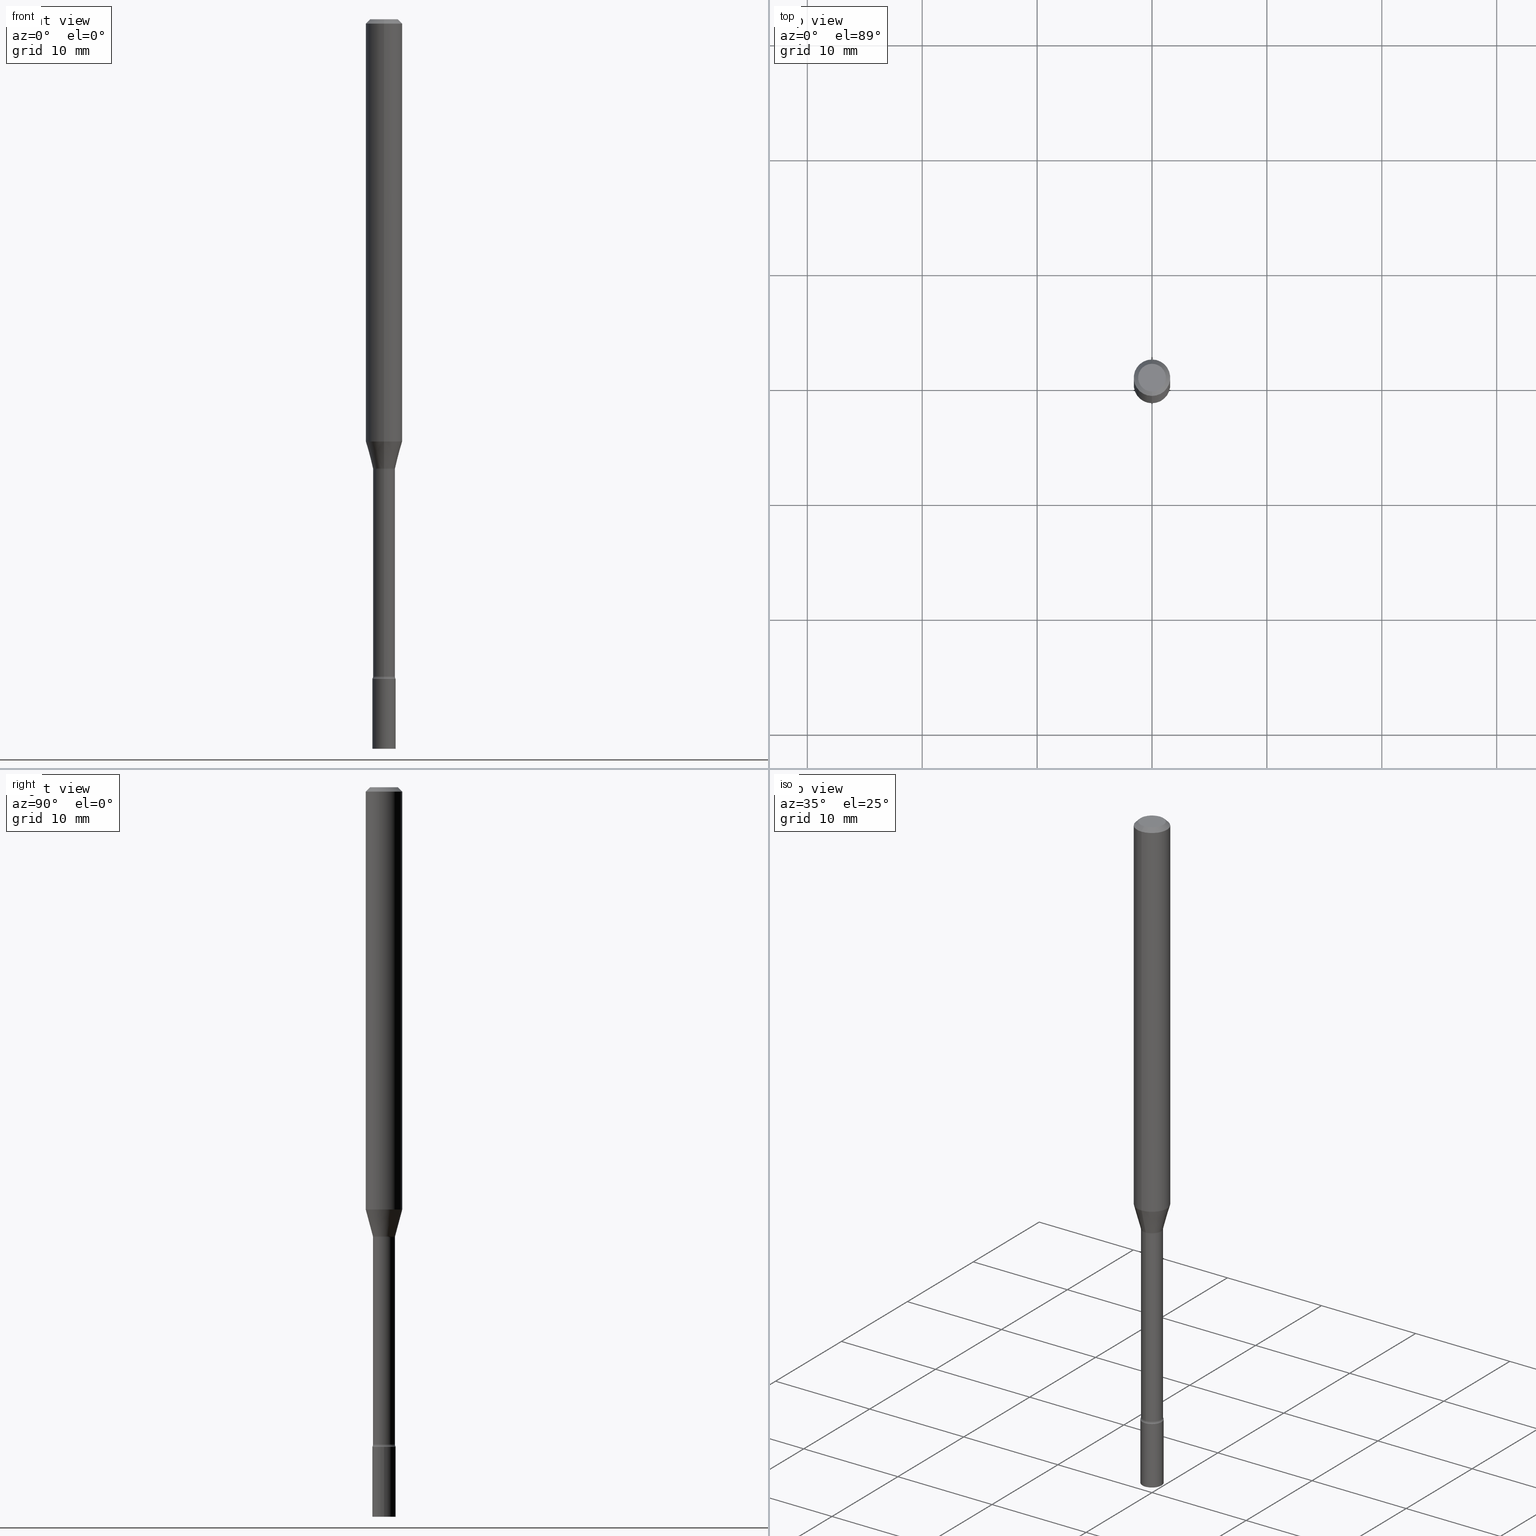
[diagram: canonical four-view strip — front | top / right | iso, engineering-drawing reading convention]
A machine part, canonical four-view strip (front | top / right | iso — engineering-drawing reading convention). The complete STEP part file that produces these views, byte-faithful:
ISO-10303-21;
HEADER;
FILE_DESCRIPTION (( 'STEP AP203' ),
    '1' );
FILE_NAME ('04312.STEP',
    '2024-03-08T23:04:33',
    ( '' ),
    ( '' ),
    'SwSTEP 2.0',
    'SolidWorks 2023',
    '' );
FILE_SCHEMA (( 'CONFIG_CONTROL_DESIGN' ));
ENDSEC;

DATA;
#1 = CARTESIAN_POINT ( 'NONE',  ( 3.770881139600357188E-29, -5.383733381285902245E-15, -1.541974787463810781 ) ) ;
#2 = ORIENTED_EDGE ( 'NONE', *, *, #17, .F. ) ;
#3 = DIRECTION ( 'NONE',  ( -2.445468806185136597E-29, 3.491481338843145583E-15, 1.000000000000000000 ) ) ;
#4 = DIRECTION ( 'NONE',  ( -6.982962677686265922E-15, -1.000000000000000000, 6.829619984160658243E-15 ) ) ;
#5 = VECTOR ( 'NONE', #238, 39.37007874015748143 ) ;
#6 = CARTESIAN_POINT ( 'NONE',  ( 4.364351673553919652E-16, 0.06249999999999995143, -0.01500000000000024751 ) ) ;
#7 = APPROVAL_PERSON_ORGANIZATION ( #48, #361, #394 ) ;
#8 = CARTESIAN_POINT ( 'NONE',  ( 5.506899991020122341E-29, -7.862268846851047983E-15, -2.251861204020249918 ) ) ;
#9 = AXIS2_PLACEMENT_3D ( 'NONE', #423, #215, #508 ) ;
#10 = DIRECTION ( 'NONE',  ( -6.982962677686265922E-15, -1.000000000000000000, 3.491453573077475087E-15 ) ) ;
#11 = DIRECTION ( 'NONE',  ( -2.445488194915675677E-29, 3.491453573077475482E-15, 1.000000000000000000 ) ) ;
#12 = AXIS2_PLACEMENT_3D ( 'NONE', #389, #422, #429 ) ;
#13 = APPROVAL_DATE_TIME ( #63, #40 ) ;
#14 = VECTOR ( 'NONE', #260, 39.37007874015748143 ) ;
#15 = ORIENTED_EDGE ( 'NONE', *, *, #89, .F. ) ;
#16 = LOCAL_TIME ( 18, 4, 33.00000000000000000, #401 ) ;
#17 = EDGE_CURVE ( 'NONE', #412, #100, #510, .T. ) ;
#18 = APPROVAL_PERSON_ORGANIZATION ( #514, #479, #266 ) ;
#19 = DIRECTION ( 'NONE',  ( -6.982962677686265922E-15, -1.000000000000000000, 3.491453573077475087E-15 ) ) ;
#20 = PERSON_AND_ORGANIZATION ( #501, #96 ) ;
#21 = EDGE_LOOP ( 'NONE', ( #110, #67, #302, #496 ) ) ;
#22 = CARTESIAN_POINT ( 'NONE',  ( 3.761387055809094447E-29, -5.370178561088847638E-15, -1.538092501787273081 ) ) ;
#23 = DIRECTION ( 'NONE',  ( -6.982962677686266711E-15, -1.000000000000000000, 3.491453573077475876E-15 ) ) ;
#24 = PLANE ( 'NONE',  #173 ) ;
#25 = CARTESIAN_POINT ( 'NONE',  ( -4.287811248607203282E-16, -0.06250000000000005551, -0.01499999999999981209 ) ) ;
#26 = EDGE_CURVE ( 'NONE', #451, #480, #363, .T. ) ;
#27 = ADVANCED_FACE ( 'NONE', ( #107 ), #325, .T. ) ;
#28 = SECURITY_CLASSIFICATION ( '', '', #306 ) ;
#29 = CIRCLE ( 'NONE', #207, 0.04000000000000000083 ) ;
#30 = CARTESIAN_POINT ( 'NONE',  ( 0.04000000000000000083, -2.793185071074506290E-16, 1.950470710318374387E-30 ) ) ;
#31 = DESIGN_CONTEXT ( 'detailed design', #139, 'design' ) ;
#32 = EDGE_LOOP ( 'NONE', ( #264, #462, #74, #414 ) ) ;
#33 = CARTESIAN_POINT ( 'NONE',  ( 2.671640686457979762E-16, 0.03760000000000005005, -1.312786543477132333E-16 ) ) ;
#34 = ORIENTED_EDGE ( 'NONE', *, *, #481, .F. ) ;
#35 = ORIENTED_EDGE ( 'NONE', *, *, #432, .T. ) ;
#36 = PERSON_AND_ORGANIZATION_ROLE ( 'design_supplier' ) ;
#37 = CARTESIAN_POINT ( 'NONE',  ( -4.364351673553912750E-16, -0.06250000000000005551, -0.01499999999999981209 ) ) ;
#38 = DIRECTION ( 'NONE',  ( -2.445488194915675677E-29, 3.491453573077475482E-15, 1.000000000000000000 ) ) ;
#39 = PERSON_AND_ORGANIZATION_ROLE ( 'creator' ) ;
#40 = APPROVAL ( #427, 'UNSPECIFIED' ) ;
#41 = EDGE_CURVE ( 'NONE', #412, #191, #185, .T. ) ;
#42 = CARTESIAN_POINT ( 'NONE',  ( 2.842170943040952512E-16, 0.03999999999999211131, -2.260000000000000675 ) ) ;
#43 = EDGE_LOOP ( 'NONE', ( #328, #367, #184, #160 ) ) ;
#44 = CARTESIAN_POINT ( 'NONE',  ( -2.625593966809491224E-16, -0.03760000000000795345, -2.251861204020249918 ) ) ;
#45 = APPROVAL_DATE_TIME ( #315, #479 ) ;
#46 = DIRECTION ( 'NONE',  ( -2.445488194915675677E-29, 3.491453573077475482E-15, 1.000000000000000000 ) ) ;
#47 = LINE ( 'NONE', #118, #5 ) ;
#48 = PERSON_AND_ORGANIZATION ( #501, #96 ) ;
#49 = FACE_OUTER_BOUND ( 'NONE', #43, .T. ) ;
#50 = ADVANCED_FACE ( 'NONE', ( #459 ), #88, .T. ) ;
#51 = DIRECTION ( 'NONE',  ( 2.445488194915675677E-29, -3.491453573077475482E-15, -1.000000000000000000 ) ) ;
#52 = AXIS2_PLACEMENT_3D ( 'NONE', #55, #324, #391 ) ;
#53 = CIRCLE ( 'NONE', #132, 0.03760000000000009168 ) ;
#54 = AXIS2_PLACEMENT_3D ( 'NONE', #402, #3, #124 ) ;
#55 = CARTESIAN_POINT ( 'NONE',  ( 3.316907271900976096E-16, 0.04749999999999999362, -1.803016596220492343E-16 ) ) ;
#56 = EDGE_CURVE ( 'NONE', #387, #146, #492, .T. ) ;
#57 = DIRECTION ( 'NONE',  ( 6.982962677686265922E-15, 1.000000000000000000, -3.483106191921935554E-15 ) ) ;
#58 = AXIS2_PLACEMENT_3D ( 'NONE', #437, #159, #265 ) ;
#59 = EDGE_LOOP ( 'NONE', ( #276, #342, #35, #296 ) ) ;
#60 = DIRECTION ( 'NONE',  ( -6.982962677686265922E-15, -1.000000000000000000, 3.491453573077475876E-15 ) ) ;
#61 = ORIENTED_EDGE ( 'NONE', *, *, #72, .T. ) ;
#62 = ORIENTED_EDGE ( 'NONE', *, *, #456, .F. ) ;
#63 = DATE_AND_TIME ( #255, #332 ) ;
#64 = EDGE_CURVE ( 'NONE', #195, #203, #95, .T. ) ;
#65 = DIRECTION ( 'NONE',  ( -2.445488194915675677E-29, 3.491453573077475482E-15, 1.000000000000000000 ) ) ;
#66 = CARTESIAN_POINT ( 'NONE',  ( -2.661284769304128200E-16, -0.03811111260566939218, -1.538092501787273081 ) ) ;
#67 = ORIENTED_EDGE ( 'NONE', *, *, #72, .F. ) ;
#68 = CIRCLE ( 'NONE', #269, 0.04000000000000000083 ) ;
#69 = DIRECTION ( 'NONE',  ( -1.000000000000000000, 6.982962677686265922E-15, -4.876176775795935793E-29 ) ) ;
#70 = DIRECTION ( 'NONE',  ( 1.000000000000000000, -6.982962677686259611E-15, 0.000000000000000000 ) ) ;
#71 = DIRECTION ( 'NONE',  ( -2.445488194915675677E-29, 3.491453573077475087E-15, 1.000000000000000000 ) ) ;
#72 = EDGE_CURVE ( 'NONE', #466, #412, #53, .T. ) ;
#73 = APPLICATION_PROTOCOL_DEFINITION ( 'international standard', 'config_control_design', 1994, #139 ) ;
#74 = ORIENTED_EDGE ( 'NONE', *, *, #26, .F. ) ;
#75 = DIRECTION ( 'NONE',  ( -2.445488194915675677E-29, 3.491453573077475482E-15, 1.000000000000000000 ) ) ;
#76 = CARTESIAN_POINT ( 'NONE',  ( 5.526759501978408888E-29, -7.890747825785510097E-15, -2.260000000000000231 ) ) ;
#77 = AXIS2_PLACEMENT_3D ( 'NONE', #22, #65, #379 ) ;
#78 = CARTESIAN_POINT ( 'NONE',  ( 3.761387055809094447E-29, -5.370178561088847638E-15, -1.538092501787273081 ) ) ;
#79 = ORIENTED_EDGE ( 'NONE', *, *, #225, .T. ) ;
#80 = CC_DESIGN_DATE_AND_TIME_ASSIGNMENT ( #256, #417, ( #129 ) ) ;
#81 = EDGE_CURVE ( 'NONE', #466, #457, #227, .T. ) ;
#82 = COORDINATED_UNIVERSAL_TIME_OFFSET ( 5, 0, .BEHIND. ) ;
#83 = CARTESIAN_POINT ( 'NONE',  ( -2.625593966809658857E-16, -0.03760000000000538606, -1.541974787463810781 ) ) ;
#84 = ADVANCED_BREP_SHAPE_REPRESENTATION ( '04312', ( #337, #333, #224 ), #253 ) ;
#85 = EDGE_LOOP ( 'NONE', ( #138, #425 ) ) ;
#86 = DIRECTION ( 'NONE',  ( -2.445488194915675677E-29, 3.491453573077475482E-15, 1.000000000000000000 ) ) ;
#87 = CONICAL_SURFACE ( 'NONE', #364, 0.06250000000000000000, 0.7853981633974483900 ) ;
#88 = CONICAL_SURFACE ( 'NONE', #12, 0.06250000000000000000, 0.7853981633974483900 ) ;
#89 = EDGE_CURVE ( 'NONE', #365, #165, #68, .T. ) ;
#90 = EDGE_CURVE ( 'NONE', #381, #287, #376, .T. ) ;
#91 = CC_DESIGN_DATE_AND_TIME_ASSIGNMENT ( #317, #405, ( #28 ) ) ;
#92 = EDGE_CURVE ( 'NONE', #146, #387, #311, .T. ) ;
#93 = ORIENTED_EDGE ( 'NONE', *, *, #92, .F. ) ;
#94 = CIRCLE ( 'NONE', #506, 0.04000000000000000083 ) ;
#95 = CIRCLE ( 'NONE', #347, 0.04749999999999999362 ) ;
#96 = ORGANIZATION ( 'UNSPECIFIED', 'UNSPECIFIED', '' ) ;
#97 = ORIENTED_EDGE ( 'NONE', *, *, #519, .T. ) ;
#98 = CALENDAR_DATE ( 2024, 8, 3 ) ;
#99 = VERTEX_POINT ( 'NONE', #377 ) ;
#100 = VERTEX_POINT ( 'NONE', #416 ) ;
#101 = DIRECTION ( 'NONE',  ( -6.982962677686265133E-15, -1.000000000000000000, 0.000000000000000000 ) ) ;
#102 = VECTOR ( 'NONE', #125, 39.37007874015748854 ) ;
#103 = ADVANCED_FACE ( 'NONE', ( #220 ), #419, .T. ) ;
#104 = DIRECTION ( 'NONE',  ( -6.982962677686265922E-15, -1.000000000000000000, 3.483106191921935554E-15 ) ) ;
#105 = CARTESIAN_POINT ( 'NONE',  ( 0.000000000000000000, 0.000000000000000000, 0.000000000000000000 ) ) ;
#106 = ORIENTED_EDGE ( 'NONE', *, *, #452, .F. ) ;
#107 = FACE_OUTER_BOUND ( 'NONE', #491, .T. ) ;
#108 = DIRECTION ( 'NONE',  ( 1.000000000000000000, 0.000000000000000000, 0.000000000000000000 ) ) ;
#109 = LINE ( 'NONE', #6, #384 ) ;
#110 = ORIENTED_EDGE ( 'NONE', *, *, #41, .F. ) ;
#111 = PERSON_AND_ORGANIZATION_ROLE ( 'classification_officer' ) ;
#112 = DIRECTION ( 'NONE',  ( -2.445468806185136597E-29, 3.491481338843145583E-15, 1.000000000000000000 ) ) ;
#113 = CIRCLE ( 'NONE', #54, 0.04000000000000000083 ) ;
#114 = CARTESIAN_POINT ( 'NONE',  ( 0.04000000000000000083, -8.170066332892960135E-15, -2.260000000000000231 ) ) ;
#115 = AXIS2_PLACEMENT_3D ( 'NONE', #488, #368, #104 ) ;
#116 = ADVANCED_FACE ( 'NONE', ( #374 ), #373, .F. ) ;
#117 = DIRECTION ( 'NONE',  ( -2.445468806185136597E-29, 3.491481338843145583E-15, 1.000000000000000000 ) ) ;
#118 = CARTESIAN_POINT ( 'NONE',  ( -0.04000000000000000083, 2.842170943040400803E-16, -1.967574036101962509E-30 ) ) ;
#119 = ORIENTED_EDGE ( 'NONE', *, *, #26, .T. ) ;
#120 = CARTESIAN_POINT ( 'NONE',  ( 5.526803320509427725E-29, -7.890685075155095314E-15, -2.260000000000000231 ) ) ;
#121 = ADVANCED_FACE ( 'NONE', ( #305 ), #24, .F. ) ;
#122 = APPROVAL_STATUS ( 'not_yet_approved' ) ;
#123 = VECTOR ( 'NONE', #188, 39.37007874015748143 ) ;
#124 = DIRECTION ( 'NONE',  ( 1.000000000000000000, -6.982962677686259611E-15, 0.000000000000000000 ) ) ;
#125 = DIRECTION ( 'NONE',  ( 1.839019923739597949E-15, 0.2588190451025246253, 0.9659258262890670910 ) ) ;
#126 = DIRECTION ( 'NONE',  ( -6.982962677686266711E-15, -1.000000000000000000, 3.491453573077475876E-15 ) ) ;
#127 = ADVANCED_FACE ( 'NONE', ( #500 ), #176, .T. ) ;
#128 = ADVANCED_FACE ( 'NONE', ( #420 ), #135, .F. ) ;
#129 = PRODUCT_DEFINITION ( 'UNKNOWN', '', #250, #31 ) ;
#130 = LOCAL_TIME ( 18, 4, 33.00000000000000000, #82 ) ;
#131 = ADVANCED_FACE ( 'NONE', ( #298 ), #474, .F. ) ;
#132 = AXIS2_PLACEMENT_3D ( 'NONE', #261, #303, #101 ) ;
#133 = ORIENTED_EDGE ( 'NONE', *, *, #481, .T. ) ;
#134 = CC_DESIGN_SECURITY_CLASSIFICATION ( #28, ( #250 ) ) ;
#135 = TOROIDAL_SURFACE ( 'NONE', #435, 0.05260000000000008419, 0.01499999999999999424 ) ;
#136 = DIRECTION ( 'NONE',  ( -6.982962677686265922E-15, -1.000000000000000000, 3.491453573077475482E-15 ) ) ;
#137 = PERSON_AND_ORGANIZATION_ROLE ( 'creator' ) ;
#138 = ORIENTED_EDGE ( 'NONE', *, *, #418, .F. ) ;
#139 = APPLICATION_CONTEXT ( 'configuration controlled 3d designs of mechanical parts and assemblies' ) ;
#140 = DIRECTION ( 'NONE',  ( -2.445488194915675677E-29, 3.491453573077475482E-15, 1.000000000000000000 ) ) ;
#141 = EDGE_CURVE ( 'NONE', #365, #451, #204, .T. ) ;
#142 = ORIENTED_EDGE ( 'NONE', *, *, #432, .F. ) ;
#143 = DIRECTION ( 'NONE',  ( -2.445488194915675677E-29, 3.491453573077475482E-15, 1.000000000000000000 ) ) ;
#144 = CARTESIAN_POINT ( 'NONE',  ( 2.793185071075117657E-16, 0.03999999999999127864, -2.500000000000000000 ) ) ;
#145 = EDGE_LOOP ( 'NONE', ( #335, #79, #93, #142 ) ) ;
#146 = VERTEX_POINT ( 'NONE', #37 ) ;
#147 = DIRECTION ( 'NONE',  ( -6.982962677686265922E-15, -1.000000000000000000, 3.483106191921935554E-15 ) ) ;
#148 = AXIS2_PLACEMENT_3D ( 'NONE', #278, #151, #464 ) ;
#149 = DIRECTION ( 'NONE',  ( -6.982962677686265922E-15, -1.000000000000000000, 0.000000000000000000 ) ) ;
#150 = EDGE_LOOP ( 'NONE', ( #178, #97, #504, #62 ) ) ;
#151 = DIRECTION ( 'NONE',  ( -2.445488194915675677E-29, 3.491453573077475482E-15, 1.000000000000000000 ) ) ;
#152 = ADVANCED_FACE ( 'NONE', ( #444 ), #189, .T. ) ;
#153 = CARTESIAN_POINT ( 'NONE',  ( 6.113672015462842613E-29, -8.728703347107864943E-15, -2.500000000000000000 ) ) ;
#154 = CARTESIAN_POINT ( 'NONE',  ( 4.440892098500625669E-16, 0.06250000000000000000, -2.182158483173421929E-16 ) ) ;
#155 = AXIS2_PLACEMENT_3D ( 'NONE', #390, #183, #196 ) ;
#156 = CALENDAR_DATE ( 2024, 8, 3 ) ;
#157 = DIRECTION ( 'NONE',  ( -6.982962677686265922E-15, -1.000000000000000000, 3.491453573077475087E-15 ) ) ;
#158 = CARTESIAN_POINT ( 'NONE',  ( 3.840629472727447874E-16, 0.04749999999999999362, -1.947592745229184119E-16 ) ) ;
#159 = DIRECTION ( 'NONE',  ( -2.445488194915675677E-29, 3.491453573077475482E-15, 1.000000000000000000 ) ) ;
#160 = ORIENTED_EDGE ( 'NONE', *, *, #56, .T. ) ;
#161 = DIRECTION ( 'NONE',  ( -6.982962677686266711E-15, -1.000000000000000000, 0.000000000000000000 ) ) ;
#162 = DIRECTION ( 'NONE',  ( -2.438088387897960049E-29, 3.491481338843145188E-15, 1.000000000000000000 ) ) ;
#163 = CIRCLE ( 'NONE', #290, 0.03811111260566402148 ) ;
#164 = CIRCLE ( 'NONE', #171, 0.06250000000000000000 ) ;
#165 = VERTEX_POINT ( 'NONE', #193 ) ;
#166 = EDGE_CURVE ( 'NONE', #99, #457, #517, .T. ) ;
#167 = AXIS2_PLACEMENT_3D ( 'NONE', #507, #140, #60 ) ;
#168 = ADVANCED_FACE ( 'NONE', ( #477 ), #520, .T. ) ;
#169 = ORIENTED_EDGE ( 'NONE', *, *, #209, .F. ) ;
#170 = CARTESIAN_POINT ( 'NONE',  ( 2.793185071075058985E-16, 0.03999999999999211131, -2.260000000000000675 ) ) ;
#171 = AXIS2_PLACEMENT_3D ( 'NONE', #283, #443, #472 ) ;
#172 = DIRECTION ( 'NONE',  ( -6.982962677686265922E-15, -1.000000000000000000, 0.000000000000000000 ) ) ;
#173 = AXIS2_PLACEMENT_3D ( 'NONE', #170, #369, #19 ) ;
#174 = AXIS2_PLACEMENT_3D ( 'NONE', #78, #509, #149 ) ;
#175 = EDGE_CURVE ( 'NONE', #466, #400, #270, .T. ) ;
#176 = PLANE ( 'NONE',  #355 ) ;
#177 =( LENGTH_UNIT ( ) NAMED_UNIT ( * ) SI_UNIT ( $, .METRE. ) );
#178 = ORIENTED_EDGE ( 'NONE', *, *, #320, .F. ) ;
#179 = CC_DESIGN_PERSON_AND_ORGANIZATION_ASSIGNMENT ( #240, #36, ( #250 ) ) ;
#180 = EDGE_CURVE ( 'NONE', #381, #99, #163, .T. ) ;
#181 = ORIENTED_EDGE ( 'NONE', *, *, #180, .F. ) ;
#182 = DIRECTION ( 'NONE',  ( -2.445468806185136597E-29, 3.491481338843145583E-15, 1.000000000000000000 ) ) ;
#183 = DIRECTION ( 'NONE',  ( -2.445488194915675677E-29, 3.491453573077475482E-15, 1.000000000000000000 ) ) ;
#184 = ORIENTED_EDGE ( 'NONE', *, *, #456, .T. ) ;
#185 = CIRCLE ( 'NONE', #228, 0.01499999999999999424 ) ;
#186 = CIRCLE ( 'NONE', #407, 0.03760000000000009168 ) ;
#187 = CARTESIAN_POINT ( 'NONE',  ( -2.793185071073953101E-16, -0.04000000000000789036, -2.259999999999999787 ) ) ;
#188 = DIRECTION ( 'NONE',  ( -4.851104656540964275E-15, -0.7071067811865500152, -0.7071067811865450192 ) ) ;
#189 = CYLINDRICAL_SURFACE ( 'NONE', #397, 0.03760000000000005005 ) ;
#190 = DIRECTION ( 'NONE',  ( 7.105427357601001859E-15, 1.000000000000000000, 0.000000000000000000 ) ) ;
#191 = VERTEX_POINT ( 'NONE', #42 ) ;
#192 = ORIENTED_EDGE ( 'NONE', *, *, #141, .T. ) ;
#193 = CARTESIAN_POINT ( 'NONE',  ( -0.04000000000000000083, -8.025508492142646404E-15, -2.500000000000000000 ) ) ;
#194 = CARTESIAN_POINT ( 'NONE',  ( -2.625593966810039482E-16, -0.03760000000000005005, 1.312786543477132333E-16 ) ) ;
#195 = VERTEX_POINT ( 'NONE', #158 ) ;
#196 = DIRECTION ( 'NONE',  ( -6.982962677686265922E-15, -1.000000000000000000, 3.491453573077475876E-15 ) ) ;
#197 = CARTESIAN_POINT ( 'NONE',  ( -3.773273898774340269E-16, -0.04749999999999999362, 1.369288149194417510E-16 ) ) ;
#198 = APPROVAL_DATE_TIME ( #352, #361 ) ;
#199 = ADVANCED_FACE ( 'NONE', ( #279 ), #476, .T. ) ;
#200 = CARTESIAN_POINT ( 'NONE',  ( 0.000000000000000000, 0.000000000000000000, 0.000000000000000000 ) ) ;
#201 = ORIENTED_EDGE ( 'NONE', *, *, #320, .T. ) ;
#202 = CARTESIAN_POINT ( 'NONE',  ( 3.668232292373520995E-31, -5.237180359616224094E-17, -0.01500000000000003067 ) ) ;
#203 = VERTEX_POINT ( 'NONE', #197 ) ;
#204 = LINE ( 'NONE', #30, #449 ) ;
#205 = FACE_OUTER_BOUND ( 'NONE', #430, .T. ) ;
#206 = CARTESIAN_POINT ( 'NONE',  ( 7.071185313342504801E-46, -1.009561824076356287E-31, -2.891522980173833663E-17 ) ) ;
#207 = AXIS2_PLACEMENT_3D ( 'NONE', #120, #86, #241 ) ;
#208 = CIRCLE ( 'NONE', #58, 0.06250000000000000000 ) ;
#209 = EDGE_CURVE ( 'NONE', #165, #480, #47, .T. ) ;
#210 = AXIS2_PLACEMENT_3D ( 'NONE', #76, #112, #513 ) ;
#211 = ADVANCED_FACE ( 'NONE', ( #348 ), #399, .T. ) ;
#212 = CIRCLE ( 'NONE', #248, 0.04000000000000000083 ) ;
#213 = PERSON_AND_ORGANIZATION ( #501, #96 ) ;
#214 = ORIENTED_EDGE ( 'NONE', *, *, #17, .T. ) ;
#215 = DIRECTION ( 'NONE',  ( -2.445488194915675677E-29, 3.491453573077475482E-15, 1.000000000000000000 ) ) ;
#216 = ORIENTED_EDGE ( 'NONE', *, *, #90, .T. ) ;
#217 = DIRECTION ( 'NONE',  ( 1.000000000000000000, -7.105427357601001070E-15, 4.926315168509521983E-29 ) ) ;
#218 = DIRECTION ( 'NONE',  ( 1.000000000000000000, -7.105427357601001070E-15, 4.926315168509521983E-29 ) ) ;
#219 = CARTESIAN_POINT ( 'NONE',  ( 2.707957421369351104E-16, 0.03811111260565865078, -1.538092501787273081 ) ) ;
#220 = FACE_OUTER_BOUND ( 'NONE', #304, .T. ) ;
#221 = ORIENTED_EDGE ( 'NONE', *, *, #166, .T. ) ;
#222 = CARTESIAN_POINT ( 'NONE',  ( 3.574424759935166620E-16, 0.03811111260565865078, -1.538092501787273081 ) ) ;
#223 = FACE_OUTER_BOUND ( 'NONE', #21, .T. ) ;
#224 = AXIS2_PLACEMENT_3D ( 'NONE', #105, #338, #108 ) ;
#225 = EDGE_CURVE ( 'NONE', #287, #387, #275, .T. ) ;
#226 = ORIENTED_EDGE ( 'NONE', *, *, #467, .T. ) ;
#227 = LINE ( 'NONE', #194, #292 ) ;
#228 = AXIS2_PLACEMENT_3D ( 'NONE', #232, #217, #190 ) ;
#229 = AXIS2_PLACEMENT_3D ( 'NONE', #299, #75, #172 ) ;
#230 = ORIENTED_EDGE ( 'NONE', *, *, #366, .F. ) ;
#231 = CARTESIAN_POINT ( 'NONE',  ( 4.440892098500982135E-16, 0.06249999999999995143, -0.01500000000000024751 ) ) ;
#232 = CARTESIAN_POINT ( 'NONE',  ( 3.737454790098683190E-16, 0.05259999999999222242, -2.251861204020250362 ) ) ;
#233 = PERSON_AND_ORGANIZATION ( #501, #96 ) ;
#234 = CYLINDRICAL_SURFACE ( 'NONE', #330, 0.04000000000000000083 ) ;
#235 = ADVANCED_FACE ( 'NONE', ( #392 ), #234, .T. ) ;
#236 = CARTESIAN_POINT ( 'NONE',  ( -3.673038368462598469E-16, -0.05260000000000538550, -1.541974787463810781 ) ) ;
#237 = CC_DESIGN_PERSON_AND_ORGANIZATION_ASSIGNMENT ( #495, #380, ( #465 ) ) ;
#238 = DIRECTION ( 'NONE',  ( -2.445468806185136877E-29, 3.491481338843145188E-15, 1.000000000000000000 ) ) ;
#239 = ORIENTED_EDGE ( 'NONE', *, *, #478, .T. ) ;
#240 = PERSON_AND_ORGANIZATION ( #501, #96 ) ;
#241 = DIRECTION ( 'NONE',  ( -6.982962677686265922E-15, -1.000000000000000000, 6.829619984160658243E-15 ) ) ;
#242 = PLANE ( 'NONE',  #372 ) ;
#243 = CARTESIAN_POINT ( 'NONE',  ( 2.756905814749742978E-16, 0.03759999999999222992, -2.251861204020249918 ) ) ;
#244 = ORIENTED_EDGE ( 'NONE', *, *, #273, .T. ) ;
#245 = EDGE_CURVE ( 'NONE', #480, #451, #113, .T. ) ;
#246 = ADVANCED_FACE ( 'NONE', ( #205 ), #242, .T. ) ;
#247 = CARTESIAN_POINT ( 'NONE',  ( 4.440892098500977205E-16, 0.06249999999999491379, -1.447071934891535516 ) ) ;
#248 = AXIS2_PLACEMENT_3D ( 'NONE', #398, #46, #4 ) ;
#249 = AXIS2_PLACEMENT_3D ( 'NONE', #263, #143, #436 ) ;
#250 = PRODUCT_DEFINITION_FORMATION_WITH_SPECIFIED_SOURCE ( 'ANY', '', #465, .NOT_KNOWN. ) ;
#251 = PLANE ( 'NONE',  #52 ) ;
#252 = DIRECTION ( 'NONE',  ( -2.445488194915675677E-29, 3.491453573077475482E-15, 1.000000000000000000 ) ) ;
#253 =( GEOMETRIC_REPRESENTATION_CONTEXT ( 3 ) GLOBAL_UNCERTAINTY_ASSIGNED_CONTEXT ( ( #450 ) ) GLOBAL_UNIT_ASSIGNED_CONTEXT ( ( #295, #375, #297 ) ) REPRESENTATION_CONTEXT ( 'NONE', 'WORKASPACE' ) );
#254 = ORIENTED_EDGE ( 'NONE', *, *, #467, .F. ) ;
#255 = CALENDAR_DATE ( 2024, 8, 3 ) ;
#256 = DATE_AND_TIME ( #98, #475 ) ;
#257 = EDGE_CURVE ( 'NONE', #412, #466, #186, .T. ) ;
#258 = EDGE_LOOP ( 'NONE', ( #385, #357, #244, #346 ) ) ;
#259 = DIRECTION ( 'NONE',  ( 2.438088387897960049E-29, -3.491481338843145188E-15, -1.000000000000000000 ) ) ;
#260 = DIRECTION ( 'NONE',  ( -1.807323732225328167E-15, -0.2588190451025179084, 0.9659258262890690894 ) ) ;
#261 = CARTESIAN_POINT ( 'NONE',  ( 5.506899991020122341E-29, -7.862268846851047983E-15, -2.251861204020249918 ) ) ;
#262 = MECHANICAL_CONTEXT ( 'NONE', #404, 'mechanical' ) ;
#263 = CARTESIAN_POINT ( 'NONE',  ( 3.761387055809094447E-29, -5.370178561088847638E-15, -1.538092501787273081 ) ) ;
#264 = ORIENTED_EDGE ( 'NONE', *, *, #89, .T. ) ;
#265 = DIRECTION ( 'NONE',  ( -6.982962677686265922E-15, -1.000000000000000000, 4.370956789862821150E-15 ) ) ;
#266 = APPROVAL_ROLE ( '' ) ;
#267 = CARTESIAN_POINT ( 'NONE',  ( 3.761387055809094447E-29, -5.370178561088847638E-15, -1.538092501787273081 ) ) ;
#268 = AXIS2_PLACEMENT_3D ( 'NONE', #206, #252, #126 ) ;
#269 = AXIS2_PLACEMENT_3D ( 'NONE', #153, #117, #274 ) ;
#270 = CIRCLE ( 'NONE', #294, 0.01499999999999999424 ) ;
#271 = ORIENTED_EDGE ( 'NONE', *, *, #478, .F. ) ;
#272 = CARTESIAN_POINT ( 'NONE',  ( 0.04000000000000000083, -9.008021854215314980E-15, -2.500000000000000000 ) ) ;
#273 = EDGE_CURVE ( 'NONE', #191, #400, #29, .T. ) ;
#274 = DIRECTION ( 'NONE',  ( 1.000000000000000000, -6.982962677686259611E-15, 0.000000000000000000 ) ) ;
#275 = LINE ( 'NONE', #154, #310 ) ;
#276 = ORIENTED_EDGE ( 'NONE', *, *, #225, .F. ) ;
#277 = APPROVAL_STATUS ( 'not_yet_approved' ) ;
#278 = CARTESIAN_POINT ( 'NONE',  ( 0.000000000000000000, 0.000000000000000000, 0.000000000000000000 ) ) ;
#279 = FACE_OUTER_BOUND ( 'NONE', #32, .T. ) ;
#280 = ORIENTED_EDGE ( 'NONE', *, *, #245, .F. ) ;
#281 = DIRECTION ( 'NONE',  ( -2.445468806185136597E-29, 3.491481338843145583E-15, 1.000000000000000000 ) ) ;
#282 = DIRECTION ( 'NONE',  ( -2.445488194915675677E-29, 3.491453573077475482E-15, 1.000000000000000000 ) ) ;
#283 = CARTESIAN_POINT ( 'NONE',  ( 3.538797333971034829E-29, -5.052384477577187527E-15, -1.447071934891535294 ) ) ;
#284 = AXIS2_PLACEMENT_3D ( 'NONE', #1, #282, #403 ) ;
#285 = CARTESIAN_POINT ( 'NONE',  ( -4.364351673553565651E-16, -0.06250000000000509315, -1.447071934891535072 ) ) ;
#286 = ADVANCED_FACE ( 'NONE', ( #49 ), #87, .T. ) ;
#287 = VERTEX_POINT ( 'NONE', #247 ) ;
#288 = CLOSED_SHELL ( 'NONE', ( #199, #246, #235, #127 ) ) ;
#289 = CC_DESIGN_PERSON_AND_ORGANIZATION_ASSIGNMENT ( #20, #137, ( #129 ) ) ;
#290 = AXIS2_PLACEMENT_3D ( 'NONE', #267, #388, #434 ) ;
#291 = ORIENTED_EDGE ( 'NONE', *, *, #413, .T. ) ;
#292 = VECTOR ( 'NONE', #71, 39.37007874015748143 ) ;
#293 = LINE ( 'NONE', #25, #123 ) ;
#294 = AXIS2_PLACEMENT_3D ( 'NONE', #307, #395, #161 ) ;
#295 =( CONVERSION_BASED_UNIT ( 'INCH', #454 ) LENGTH_UNIT ( ) NAMED_UNIT ( #487 ) );
#296 = ORIENTED_EDGE ( 'NONE', *, *, #56, .F. ) ;
#297 =( NAMED_UNIT ( * ) SI_UNIT ( $, .STERADIAN. ) SOLID_ANGLE_UNIT ( ) );
#298 = FACE_OUTER_BOUND ( 'NONE', #424, .T. ) ;
#299 = CARTESIAN_POINT ( 'NONE',  ( 3.770881139600357188E-29, -5.383733381285902245E-15, -1.541974787463810781 ) ) ;
#300 = VECTOR ( 'NONE', #469, 39.37007874015748143 ) ;
#301 = ORIENTED_EDGE ( 'NONE', *, *, #413, .F. ) ;
#302 = ORIENTED_EDGE ( 'NONE', *, *, #175, .T. ) ;
#303 = DIRECTION ( 'NONE',  ( -2.445488194915675677E-29, 3.491453573077475482E-15, 1.000000000000000000 ) ) ;
#304 = EDGE_LOOP ( 'NONE', ( #386, #216, #230, #271 ) ) ;
#305 = FACE_OUTER_BOUND ( 'NONE', #85, .T. ) ;
#306 = SECURITY_CLASSIFICATION_LEVEL ( 'unclassified' ) ;
#307 = CARTESIAN_POINT ( 'NONE',  ( -3.673038368462430836E-16, -0.05260000000000794596, -2.251861204020249918 ) ) ;
#308 = CARTESIAN_POINT ( 'NONE',  ( -4.364351673553916201E-16, -0.06250000000000000000, 2.182158483173421929E-16 ) ) ;
#309 = PERSON_AND_ORGANIZATION ( #501, #96 ) ;
#310 = VECTOR ( 'NONE', #438, 39.37007874015748143 ) ;
#311 = CIRCLE ( 'NONE', #115, 0.06250000000000000000 ) ;
#312 = AXIS2_PLACEMENT_3D ( 'NONE', #448, #11, #10 ) ;
#313 = DIRECTION ( 'NONE',  ( -1.000000000000000000, 6.982962677686265922E-15, -4.883557194083112340E-29 ) ) ;
#314 = CARTESIAN_POINT ( 'NONE',  ( 0.000000000000000000, 0.000000000000000000, 0.000000000000000000 ) ) ;
#315 = DATE_AND_TIME ( #468, #408 ) ;
#316 = VERTEX_POINT ( 'NONE', #285 ) ;
#317 = DATE_AND_TIME ( #156, #130 ) ;
#318 = DIRECTION ( 'NONE',  ( -6.982962677686265133E-15, -1.000000000000000000, 0.000000000000000000 ) ) ;
#319 = AXIS2_PLACEMENT_3D ( 'NONE', #336, #378, #147 ) ;
#320 = EDGE_CURVE ( 'NONE', #203, #195, #490, .T. ) ;
#321 = AXIS2_PLACEMENT_3D ( 'NONE', #314, #345, #441 ) ;
#322 = DIRECTION ( 'NONE',  ( -2.445488194915675677E-29, 3.491453573077475482E-15, 1.000000000000000000 ) ) ;
#323 = FACE_OUTER_BOUND ( 'NONE', #145, .T. ) ;
#324 = DIRECTION ( 'NONE',  ( 2.445488194915675677E-29, -3.491453573077475087E-15, -1.000000000000000000 ) ) ;
#325 = CONICAL_SURFACE ( 'NONE', #249, 0.03811111260566402148, 0.2617993877991499629 ) ;
#326 = PRODUCT_DEFINITION_SHAPE ( 'NONE', 'NONE',  #129 ) ;
#327 = ORIENTED_EDGE ( 'NONE', *, *, #494, .T. ) ;
#328 = ORIENTED_EDGE ( 'NONE', *, *, #519, .F. ) ;
#329 = ADVANCED_FACE ( 'NONE', ( #323 ), #362, .T. ) ;
#330 = AXIS2_PLACEMENT_3D ( 'NONE', #484, #281, #406 ) ;
#331 = EDGE_LOOP ( 'NONE', ( #169, #133, #192, #280 ) ) ;
#332 = LOCAL_TIME ( 18, 4, 33.00000000000000000, #511 ) ;
#333 = MANIFOLD_SOLID_BREP ( 'Body-Move/Copy2[2]', #485 ) ;
#334 = CARTESIAN_POINT ( 'NONE',  ( -0.04000000000000000083, -8.025508492142646404E-15, -2.260000000000000231 ) ) ;
#335 = ORIENTED_EDGE ( 'NONE', *, *, #366, .T. ) ;
#336 = CARTESIAN_POINT ( 'NONE',  ( 3.668232292373520995E-31, -5.237180359616224094E-17, -0.01500000000000003067 ) ) ;
#337 = MANIFOLD_SOLID_BREP ( 'Body-Move/Copy2[1]', #288 ) ;
#338 = DIRECTION ( 'NONE',  ( 0.000000000000000000, 0.000000000000000000, 1.000000000000000000 ) ) ;
#339 = EDGE_LOOP ( 'NONE', ( #61, #214, #254, #344 ) ) ;
#340 = CARTESIAN_POINT ( 'NONE',  ( 3.737454790098503724E-16, 0.05259999999999460940, -1.541974787463811225 ) ) ;
#341 = CIRCLE ( 'NONE', #382, 0.01499999999999998557 ) ;
#342 = ORIENTED_EDGE ( 'NONE', *, *, #360, .T. ) ;
#343 = CARTESIAN_POINT ( 'NONE',  ( 0.000000000000000000, 0.000000000000000000, 0.000000000000000000 ) ) ;
#344 = ORIENTED_EDGE ( 'NONE', *, *, #81, .F. ) ;
#345 = DIRECTION ( 'NONE',  ( -2.445468806185136597E-29, 3.491481338843145583E-15, 1.000000000000000000 ) ) ;
#346 = ORIENTED_EDGE ( 'NONE', *, *, #175, .F. ) ;
#347 = AXIS2_PLACEMENT_3D ( 'NONE', #463, #38, #23 ) ;
#348 = FACE_OUTER_BOUND ( 'NONE', #489, .T. ) ;
#349 = DIRECTION ( 'NONE',  ( -6.982962677686266711E-15, -1.000000000000000000, 0.000000000000000000 ) ) ;
#350 = DIRECTION ( 'NONE',  ( -6.982962677686265922E-15, -1.000000000000000000, 3.491453573077475087E-15 ) ) ;
#351 = ORIENTED_EDGE ( 'NONE', *, *, #166, .F. ) ;
#352 = DATE_AND_TIME ( #473, #16 ) ;
#353 = DIRECTION ( 'NONE',  ( 1.000000000000000000, -6.982962677686265922E-15, 4.876176775795935793E-29 ) ) ;
#354 = CIRCLE ( 'NONE', #284, 0.03760000000000000148 ) ;
#355 = AXIS2_PLACEMENT_3D ( 'NONE', #144, #259, #69 ) ;
#356 = VECTOR ( 'NONE', #470, 39.37007874015748143 ) ;
#357 = ORIENTED_EDGE ( 'NONE', *, *, #41, .T. ) ;
#358 = ADVANCED_FACE ( 'NONE', ( #411 ), #251, .F. ) ;
#359 = DIRECTION ( 'NONE',  ( -2.445488194915675677E-29, 3.491453573077475482E-15, 1.000000000000000000 ) ) ;
#360 = EDGE_CURVE ( 'NONE', #287, #316, #164, .T. ) ;
#361 = APPROVAL ( #122, 'UNSPECIFIED' ) ;
#362 = CYLINDRICAL_SURFACE ( 'NONE', #312, 0.06250000000000000000 ) ;
#363 = CIRCLE ( 'NONE', #210, 0.04000000000000000083 ) ;
#364 = AXIS2_PLACEMENT_3D ( 'NONE', #202, #51, #57 ) ;
#365 = VERTEX_POINT ( 'NONE', #272 ) ;
#366 = EDGE_CURVE ( 'NONE', #316, #287, #208, .T. ) ;
#367 = ORIENTED_EDGE ( 'NONE', *, *, #64, .F. ) ;
#368 = DIRECTION ( 'NONE',  ( -2.445488194915675677E-29, 3.491453573077475482E-15, 1.000000000000000000 ) ) ;
#369 = DIRECTION ( 'NONE',  ( -2.445488194915675677E-29, 3.491453573077475087E-15, 1.000000000000000000 ) ) ;
#370 = APPLICATION_PROTOCOL_DEFINITION ( 'international standard', 'config_control_design', 1994, #404 ) ;
#371 = ORIENTED_EDGE ( 'NONE', *, *, #494, .F. ) ;
#372 = AXIS2_PLACEMENT_3D ( 'NONE', #445, #162, #353 ) ;
#373 = TOROIDAL_SURFACE ( 'NONE', #167, 0.05260000000000000092, 0.01499999999999998557 ) ;
#374 = FACE_OUTER_BOUND ( 'NONE', #439, .T. ) ;
#375 =( NAMED_UNIT ( * ) PLANE_ANGLE_UNIT ( ) SI_UNIT ( $, .RADIAN. ) );
#376 = LINE ( 'NONE', #219, #102 ) ;
#377 = CARTESIAN_POINT ( 'NONE',  ( -2.661284769304128200E-16, -0.03811111260566939218, -1.538092501787273081 ) ) ;
#378 = DIRECTION ( 'NONE',  ( -2.445488194915675677E-29, 3.491453573077475482E-15, 1.000000000000000000 ) ) ;
#379 = DIRECTION ( 'NONE',  ( -6.982962677686265922E-15, -1.000000000000000000, 0.000000000000000000 ) ) ;
#380 = PERSON_AND_ORGANIZATION_ROLE ( 'design_owner' ) ;
#381 = VERTEX_POINT ( 'NONE', #222 ) ;
#382 = AXIS2_PLACEMENT_3D ( 'NONE', #340, #218, #415 ) ;
#383 = EDGE_LOOP ( 'NONE', ( #15, #34 ) ) ;
#384 = VECTOR ( 'NONE', #446, 39.37007874015748143 ) ;
#385 = ORIENTED_EDGE ( 'NONE', *, *, #257, .F. ) ;
#386 = ORIENTED_EDGE ( 'NONE', *, *, #452, .T. ) ;
#387 = VERTEX_POINT ( 'NONE', #231 ) ;
#388 = DIRECTION ( 'NONE',  ( -2.445488194915675677E-29, 3.491453573077475482E-15, 1.000000000000000000 ) ) ;
#389 = CARTESIAN_POINT ( 'NONE',  ( 3.668232292373520995E-31, -5.237180359616224094E-17, -0.01500000000000003067 ) ) ;
#390 = CARTESIAN_POINT ( 'NONE',  ( 3.770851242666705328E-29, -5.383776195396521708E-15, -1.541974787463811003 ) ) ;
#391 = DIRECTION ( 'NONE',  ( 6.982962677686265922E-15, 1.000000000000000000, -3.491453573077475087E-15 ) ) ;
#392 = FACE_OUTER_BOUND ( 'NONE', #331, .T. ) ;
#393 = ORIENTED_EDGE ( 'NONE', *, *, #180, .T. ) ;
#394 = APPROVAL_ROLE ( '' ) ;
#395 = DIRECTION ( 'NONE',  ( -1.000000000000000000, 6.982962677686265922E-15, -4.883557194083112340E-29 ) ) ;
#396 = CC_DESIGN_APPROVAL ( #479, ( #250 ) ) ;
#397 = AXIS2_PLACEMENT_3D ( 'NONE', #343, #512, #157 ) ;
#398 = CARTESIAN_POINT ( 'NONE',  ( 5.526803320509427725E-29, -7.890685075155095314E-15, -2.260000000000000231 ) ) ;
#399 = CYLINDRICAL_SURFACE ( 'NONE', #471, 0.03760000000000005005 ) ;
#400 = VERTEX_POINT ( 'NONE', #187 ) ;
#401 = COORDINATED_UNIVERSAL_TIME_OFFSET ( 5, 0, .BEHIND. ) ;
#402 = CARTESIAN_POINT ( 'NONE',  ( 5.526759501978408888E-29, -7.890747825785510097E-15, -2.260000000000000231 ) ) ;
#403 = DIRECTION ( 'NONE',  ( -6.982962677686265922E-15, -1.000000000000000000, 0.000000000000000000 ) ) ;
#404 = APPLICATION_CONTEXT ( 'configuration controlled 3d designs of mechanical parts and assemblies' ) ;
#405 = DATE_TIME_ROLE ( 'classification_date' ) ;
#406 = DIRECTION ( 'NONE',  ( 1.000000000000000000, -6.982962677686265922E-15, 4.876176775795935793E-29 ) ) ;
#407 = AXIS2_PLACEMENT_3D ( 'NONE', #8, #322, #318 ) ;
#408 = LOCAL_TIME ( 18, 4, 33.00000000000000000, #440 ) ;
#409 = CC_DESIGN_APPROVAL ( #40, ( #129 ) ) ;
#410 = PRODUCT_RELATED_PRODUCT_CATEGORY ( 'detail', '', ( #465 ) ) ;
#411 = FACE_OUTER_BOUND ( 'NONE', #483, .T. ) ;
#412 = VERTEX_POINT ( 'NONE', #243 ) ;
#413 = EDGE_CURVE ( 'NONE', #100, #457, #354, .T. ) ;
#414 = ORIENTED_EDGE ( 'NONE', *, *, #141, .F. ) ;
#415 = DIRECTION ( 'NONE',  ( 7.105427357601001859E-15, 1.000000000000000000, 0.000000000000000000 ) ) ;
#416 = CARTESIAN_POINT ( 'NONE',  ( 2.671640686458530486E-16, 0.03759999999999462383, -1.541974787463810781 ) ) ;
#417 = DATE_TIME_ROLE ( 'creation_date' ) ;
#418 = EDGE_CURVE ( 'NONE', #400, #191, #212, .T. ) ;
#419 = CONICAL_SURFACE ( 'NONE', #77, 0.03811111260566402148, 0.2617993877991499629 ) ;
#420 = FACE_OUTER_BOUND ( 'NONE', #258, .T. ) ;
#421 = LINE ( 'NONE', #66, #14 ) ;
#422 = DIRECTION ( 'NONE',  ( 2.445488194915675677E-29, -3.491453573077475482E-15, -1.000000000000000000 ) ) ;
#423 = CARTESIAN_POINT ( 'NONE',  ( 5.506856330290025342E-29, -7.862331371501561090E-15, -2.251861204020249918 ) ) ;
#424 = EDGE_LOOP ( 'NONE', ( #181, #327, #291, #351 ) ) ;
#425 = ORIENTED_EDGE ( 'NONE', *, *, #273, .F. ) ;
#426 = ORIENTED_EDGE ( 'NONE', *, *, #90, .F. ) ;
#427 = APPROVAL_STATUS ( 'not_yet_approved' ) ;
#428 = ORIENTED_EDGE ( 'NONE', *, *, #81, .T. ) ;
#429 = DIRECTION ( 'NONE',  ( 6.982962677686265922E-15, 1.000000000000000000, -3.483106191921935554E-15 ) ) ;
#430 = EDGE_LOOP ( 'NONE', ( #119, #498 ) ) ;
#431 = TOROIDAL_SURFACE ( 'NONE', #9, 0.05260000000000008419, 0.01499999999999999424 ) ;
#432 = EDGE_CURVE ( 'NONE', #316, #146, #482, .T. ) ;
#433 = SHAPE_DEFINITION_REPRESENTATION ( #326, #84 ) ;
#434 = DIRECTION ( 'NONE',  ( -6.982962677686265922E-15, -1.000000000000000000, 0.000000000000000000 ) ) ;
#435 = AXIS2_PLACEMENT_3D ( 'NONE', #461, #359, #136 ) ;
#436 = DIRECTION ( 'NONE',  ( -6.982962677686265922E-15, -1.000000000000000000, 0.000000000000000000 ) ) ;
#437 = CARTESIAN_POINT ( 'NONE',  ( 3.538797333971034829E-29, -5.052384477577187527E-15, -1.447071934891535294 ) ) ;
#438 = DIRECTION ( 'NONE',  ( -2.445488194915675677E-29, 3.491453573077475087E-15, 1.000000000000000000 ) ) ;
#439 = EDGE_LOOP ( 'NONE', ( #371, #106, #221, #226 ) ) ;
#440 = COORDINATED_UNIVERSAL_TIME_OFFSET ( 5, 0, .BEHIND. ) ;
#441 = DIRECTION ( 'NONE',  ( 1.000000000000000000, -6.982962677686265922E-15, 4.876176775795935793E-29 ) ) ;
#442 = ORIENTED_EDGE ( 'NONE', *, *, #360, .F. ) ;
#443 = DIRECTION ( 'NONE',  ( -2.445488194915675677E-29, 3.491453573077475482E-15, 1.000000000000000000 ) ) ;
#444 = FACE_OUTER_BOUND ( 'NONE', #339, .T. ) ;
#445 = CARTESIAN_POINT ( 'NONE',  ( 5.526759501978408888E-29, -7.890747825785510097E-15, -2.260000000000000231 ) ) ;
#446 = DIRECTION ( 'NONE',  ( 4.937700262164548042E-15, 0.7071067811865451302, -0.7071067811865499042 ) ) ;
#447 = CC_DESIGN_APPROVAL ( #361, ( #28 ) ) ;
#448 = CARTESIAN_POINT ( 'NONE',  ( 0.000000000000000000, 0.000000000000000000, 0.000000000000000000 ) ) ;
#449 = VECTOR ( 'NONE', #516, 39.37007874015748143 ) ;
#450 = UNCERTAINTY_MEASURE_WITH_UNIT (LENGTH_MEASURE( 1.000000000000000082E-05 ), #295, 'distance_accuracy_value', 'NONE');
#451 = VERTEX_POINT ( 'NONE', #114 ) ;
#452 = EDGE_CURVE ( 'NONE', #99, #381, #486, .T. ) ;
#453 = CIRCLE ( 'NONE', #229, 0.03760000000000000148 ) ;
#454 = LENGTH_MEASURE_WITH_UNIT ( LENGTH_MEASURE( 0.02539999999999999897 ), #177 );
#455 = COORDINATED_UNIVERSAL_TIME_OFFSET ( 5, 0, .BEHIND. ) ;
#456 = EDGE_CURVE ( 'NONE', #195, #387, #109, .T. ) ;
#457 = VERTEX_POINT ( 'NONE', #83 ) ;
#458 = CC_DESIGN_PERSON_AND_ORGANIZATION_ASSIGNMENT ( #309, #39, ( #250 ) ) ;
#459 = FACE_OUTER_BOUND ( 'NONE', #150, .T. ) ;
#460 = AXIS2_PLACEMENT_3D ( 'NONE', #236, #313, #349 ) ;
#461 = CARTESIAN_POINT ( 'NONE',  ( 5.506856330290025342E-29, -7.862331371501561090E-15, -2.251861204020249918 ) ) ;
#462 = ORIENTED_EDGE ( 'NONE', *, *, #209, .T. ) ;
#463 = CARTESIAN_POINT ( 'NONE',  ( 7.071185313342504801E-46, -1.009561824076356287E-31, -2.891522980173833663E-17 ) ) ;
#464 = DIRECTION ( 'NONE',  ( -6.982962677686265922E-15, -1.000000000000000000, 3.491453573077475087E-15 ) ) ;
#465 = PRODUCT ( '04312', '04312', '', ( #262 ) ) ;
#466 = VERTEX_POINT ( 'NONE', #44 ) ;
#467 = EDGE_CURVE ( 'NONE', #457, #100, #453, .T. ) ;
#468 = CALENDAR_DATE ( 2024, 8, 3 ) ;
#469 = DIRECTION ( 'NONE',  ( -2.445488194915675677E-29, 3.491453573077475087E-15, 1.000000000000000000 ) ) ;
#470 = DIRECTION ( 'NONE',  ( -2.445488194915675677E-29, 3.491453573077475087E-15, 1.000000000000000000 ) ) ;
#471 = AXIS2_PLACEMENT_3D ( 'NONE', #200, #515, #350 ) ;
#472 = DIRECTION ( 'NONE',  ( -6.982962677686265922E-15, -1.000000000000000000, 4.370956789862821150E-15 ) ) ;
#473 = CALENDAR_DATE ( 2024, 8, 3 ) ;
#474 = TOROIDAL_SURFACE ( 'NONE', #155, 0.05260000000000000092, 0.01499999999999998557 ) ;
#475 = LOCAL_TIME ( 18, 4, 33.00000000000000000, #455 ) ;
#476 = CYLINDRICAL_SURFACE ( 'NONE', #321, 0.04000000000000000083 ) ;
#477 = FACE_OUTER_BOUND ( 'NONE', #59, .T. ) ;
#478 = EDGE_CURVE ( 'NONE', #99, #316, #421, .T. ) ;
#479 = APPROVAL ( #277, 'UNSPECIFIED' ) ;
#480 = VERTEX_POINT ( 'NONE', #334 ) ;
#481 = EDGE_CURVE ( 'NONE', #165, #365, #94, .T. ) ;
#482 = LINE ( 'NONE', #308, #356 ) ;
#483 = EDGE_LOOP ( 'NONE', ( #503, #201 ) ) ;
#484 = CARTESIAN_POINT ( 'NONE',  ( 0.000000000000000000, 0.000000000000000000, 0.000000000000000000 ) ) ;
#485 = CLOSED_SHELL ( 'NONE', ( #131, #152, #128, #50, #329, #103, #27, #168, #286, #358, #121, #518, #211, #116 ) ) ;
#486 = CIRCLE ( 'NONE', #174, 0.03811111260566402148 ) ;
#487 = DIMENSIONAL_EXPONENTS ( 1.000000000000000000, 0.000000000000000000, 0.000000000000000000, 0.000000000000000000, 0.000000000000000000, 0.000000000000000000, 0.000000000000000000 ) ;
#488 = CARTESIAN_POINT ( 'NONE',  ( 3.668232292373520995E-31, -5.237180359616224094E-17, -0.01500000000000003067 ) ) ;
#489 = EDGE_LOOP ( 'NONE', ( #2, #505, #428, #301 ) ) ;
#490 = CIRCLE ( 'NONE', #268, 0.04749999999999999362 ) ;
#491 = EDGE_LOOP ( 'NONE', ( #426, #393, #239, #442 ) ) ;
#492 = CIRCLE ( 'NONE', #319, 0.06250000000000000000 ) ;
#493 = APPROVAL_PERSON_ORGANIZATION ( #213, #40, #502 ) ;
#494 = EDGE_CURVE ( 'NONE', #381, #100, #341, .T. ) ;
#495 = PERSON_AND_ORGANIZATION ( #501, #96 ) ;
#496 = ORIENTED_EDGE ( 'NONE', *, *, #418, .T. ) ;
#497 = CC_DESIGN_PERSON_AND_ORGANIZATION_ASSIGNMENT ( #233, #111, ( #28 ) ) ;
#498 = ORIENTED_EDGE ( 'NONE', *, *, #245, .T. ) ;
#499 = CARTESIAN_POINT ( 'NONE',  ( 6.113672015462842613E-29, -8.728703347107864943E-15, -2.500000000000000000 ) ) ;
#500 = FACE_OUTER_BOUND ( 'NONE', #383, .T. ) ;
#501 = PERSON ( 'UNSPECIFIED', 'UNSPECIFIED', 'UNSPECIFIED', ('UNSPECIFIED'), ('UNSPECIFIED'), ('UNSPECIFIED') ) ;
#502 = APPROVAL_ROLE ( '' ) ;
#503 = ORIENTED_EDGE ( 'NONE', *, *, #64, .T. ) ;
#504 = ORIENTED_EDGE ( 'NONE', *, *, #92, .T. ) ;
#505 = ORIENTED_EDGE ( 'NONE', *, *, #257, .T. ) ;
#506 = AXIS2_PLACEMENT_3D ( 'NONE', #499, #182, #70 ) ;
#507 = CARTESIAN_POINT ( 'NONE',  ( 3.770851242666705328E-29, -5.383776195396521708E-15, -1.541974787463811003 ) ) ;
#508 = DIRECTION ( 'NONE',  ( -6.982962677686265922E-15, -1.000000000000000000, 3.491453573077475482E-15 ) ) ;
#509 = DIRECTION ( 'NONE',  ( -2.445488194915675677E-29, 3.491453573077475482E-15, 1.000000000000000000 ) ) ;
#510 = LINE ( 'NONE', #33, #300 ) ;
#511 = COORDINATED_UNIVERSAL_TIME_OFFSET ( 5, 0, .BEHIND. ) ;
#512 = DIRECTION ( 'NONE',  ( -2.445488194915675677E-29, 3.491453573077475482E-15, 1.000000000000000000 ) ) ;
#513 = DIRECTION ( 'NONE',  ( 1.000000000000000000, -6.982962677686259611E-15, 0.000000000000000000 ) ) ;
#514 = PERSON_AND_ORGANIZATION ( #501, #96 ) ;
#515 = DIRECTION ( 'NONE',  ( -2.445488194915675677E-29, 3.491453573077475482E-15, 1.000000000000000000 ) ) ;
#516 = DIRECTION ( 'NONE',  ( -2.445468806185136877E-29, 3.491481338843145188E-15, 1.000000000000000000 ) ) ;
#517 = CIRCLE ( 'NONE', #460, 0.01499999999999998557 ) ;
#518 = ADVANCED_FACE ( 'NONE', ( #223 ), #431, .F. ) ;
#519 = EDGE_CURVE ( 'NONE', #203, #146, #293, .T. ) ;
#520 = CYLINDRICAL_SURFACE ( 'NONE', #148, 0.06250000000000000000 ) ;
ENDSEC;
END-ISO-10303-21;
